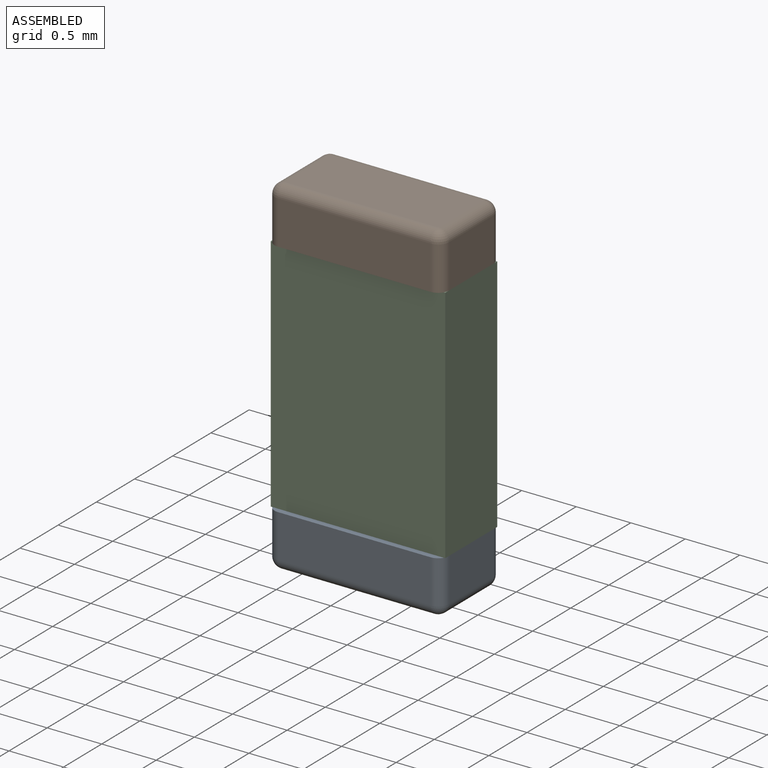
[diagram: assembled view]
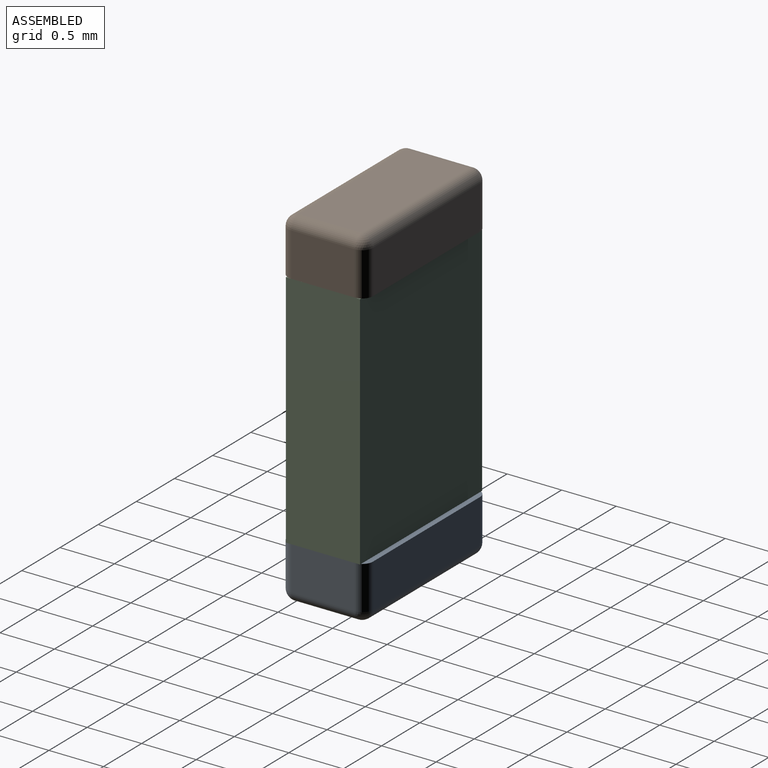
[diagram: assembled view, second angle]
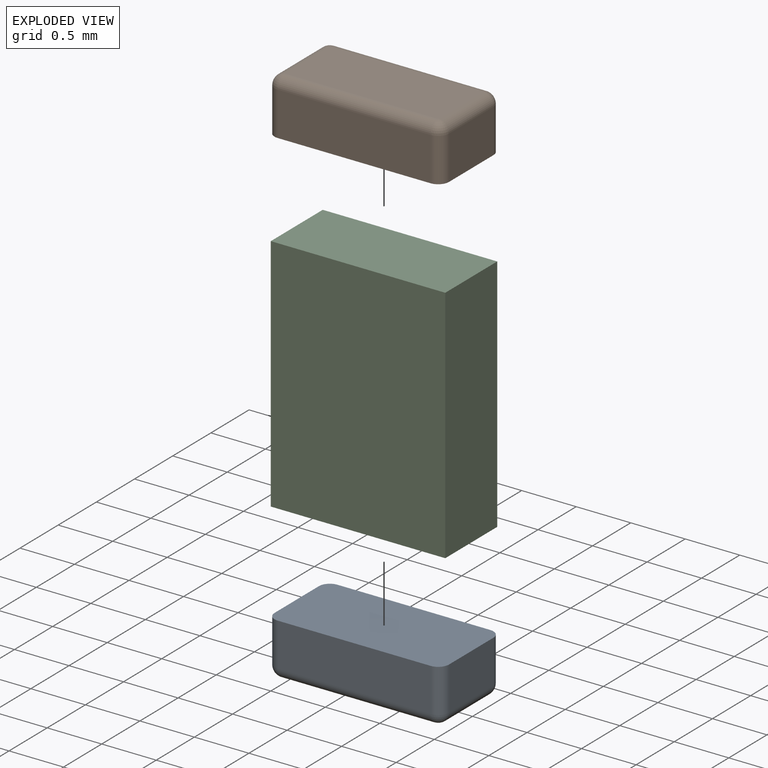
[diagram: exploded view]
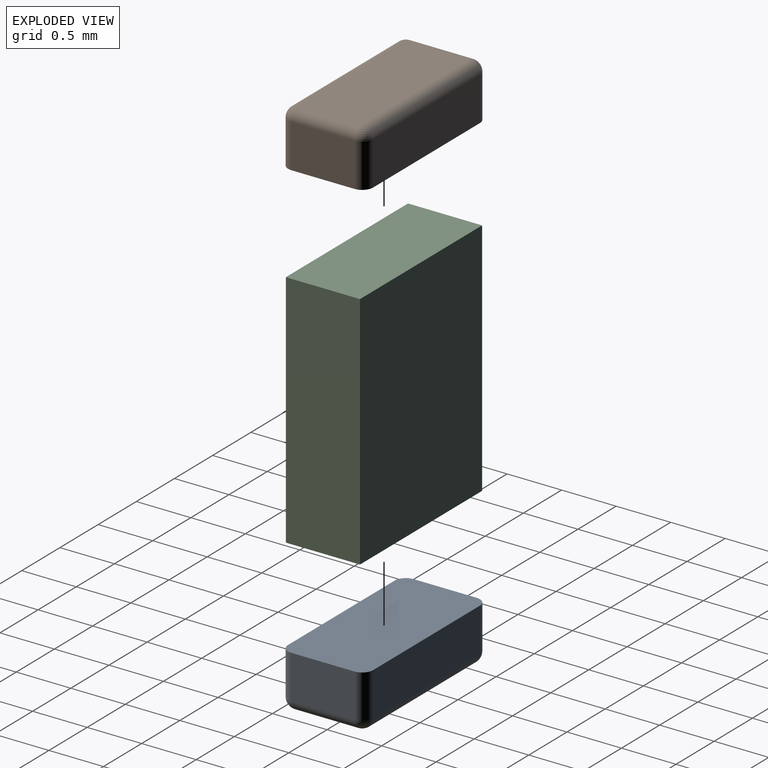
[diagram: exploded view, second angle]
ASSEMBLY  parts=3 mates=2
PART A: 18 faces, bbox 1.6x0.8x0.5 mm
  f0: plane 0.58x0.4mm, normal (-1,0,0), area 0.2mm2, adj f1,f6,f7,f8
  f1: plane 1.6x0.78mm, normal (0,0,-1), area 1.2mm2, adj f0,f2,f4,f5,f6,f8,f11,f14
  f2: plane 0.58x0.4mm, normal (1,0,0), area 0.2mm2, adj f1,f11,f14,f17
  f3: plane 1.4x0.58mm, normal (0,0,1), area 0.8mm2, adj f7,f12,f13,f17
  f4: plane 1.4x0.4mm, normal (0,-1,0), area 0.6mm2, adj f1,f6,f11,f12
  f5: plane 1.4x0.4mm, normal (0,1,0), area 0.6mm2, adj f1,f8,f13,f14
  f6: cylinder r=0.1mm len=0.4mm, axis (0,0,1), area 0.1mm2, adj f0,f1,f4,f9
  f7: cylinder r=0.1mm len=0.58mm, axis (0,-1,0), area 0.1mm2, adj f0,f3,f9,f10
  f8: cylinder r=0.1mm len=0.4mm, axis (0,0,-1), area 0.1mm2, adj f0,f1,f5,f10
  f9: sphere r=0.1mm, area 0mm2, adj f6,f7,f12
  f10: sphere r=0.1mm, area 0mm2, adj f7,f8,f13
  f11: cylinder r=0.1mm len=0.4mm, axis (0,0,-1), area 0.1mm2, adj f1,f2,f4,f15
  f12: cylinder r=0.1mm len=1.4mm, axis (1,0,0), area 0.2mm2, adj f3,f4,f9,f15
  f13: cylinder r=0.1mm len=1.4mm, axis (-1,0,0), area 0.2mm2, adj f3,f5,f10,f16
  f14: cylinder r=0.1mm len=0.4mm, axis (0,0,1), area 0.1mm2, adj f1,f2,f5,f16
  f15: sphere r=0.1mm, area 0mm2, adj f11,f12,f17
  f16: sphere r=0.1mm, area 0mm2, adj f13,f14,f17
  f17: cylinder r=0.1mm len=0.58mm, axis (0,1,0), area 0.1mm2, adj f2,f3,f15,f16
PART B: same geometry as A
PART C: 6 faces, bbox 2.2x1.6x0.7 mm
  f0: plane 1.6x0.68mm, normal (1,0,0), area 1.1mm2, adj f1,f3,f4,f5
  f1: plane 2.2x0.68mm, normal (0,1,0), area 1.5mm2, adj f0,f2,f4,f5
  f2: plane 1.6x0.68mm, normal (-1,0,0), area 1.1mm2, adj f1,f3,f4,f5
  f3: plane 2.2x0.68mm, normal (0,-1,0), area 1.5mm2, adj f0,f2,f4,f5
  f4: plane 2.2x1.6mm, normal (0,0,1), area 3.5mm2, adj f0,f1,f2,f3
  f5: plane 2.2x1.6mm, normal (0,0,-1), area 3.5mm2, adj f0,f1,f2,f3
PLACE A rot(axis=(1,0,0),180deg) t=(-2.79,-1.92,-1.99)mm
PLACE B t=(-2.79,-1.14,0.71)mm
PLACE C rot(axis=(-0.58,-0.58,-0.58),120deg) t=(-2.79,-1.87,-0.64)mm
MATE fastened C.f0 <-> B.f1  axis (0,0,1) through (-2.79,-1.53,0.46)mm
MATE fastened A.f1 <-> C.f2  axis (0,0,1) through (-2.79,-1.53,-1.74)mm
